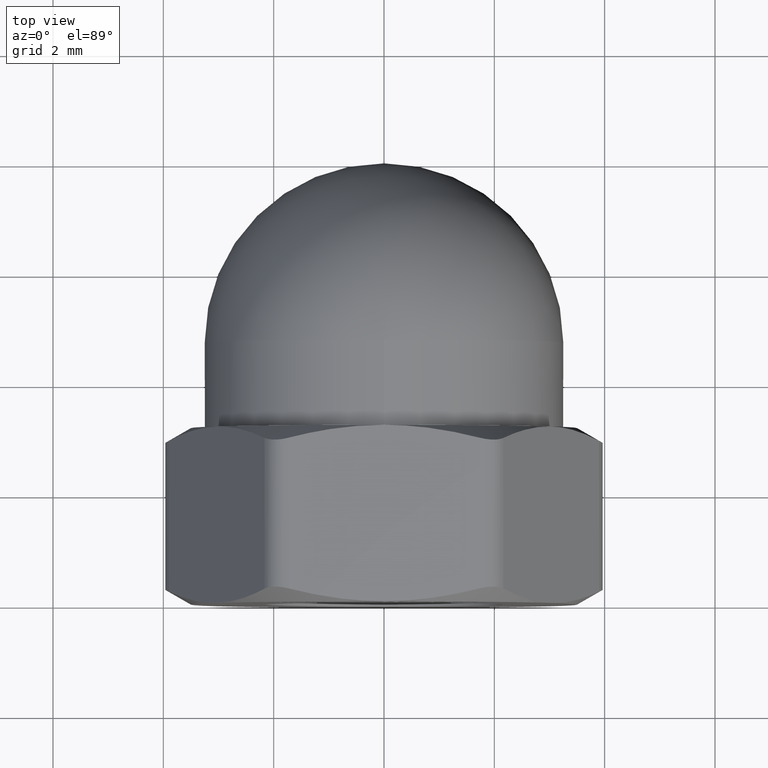
[diagram: clean part render]
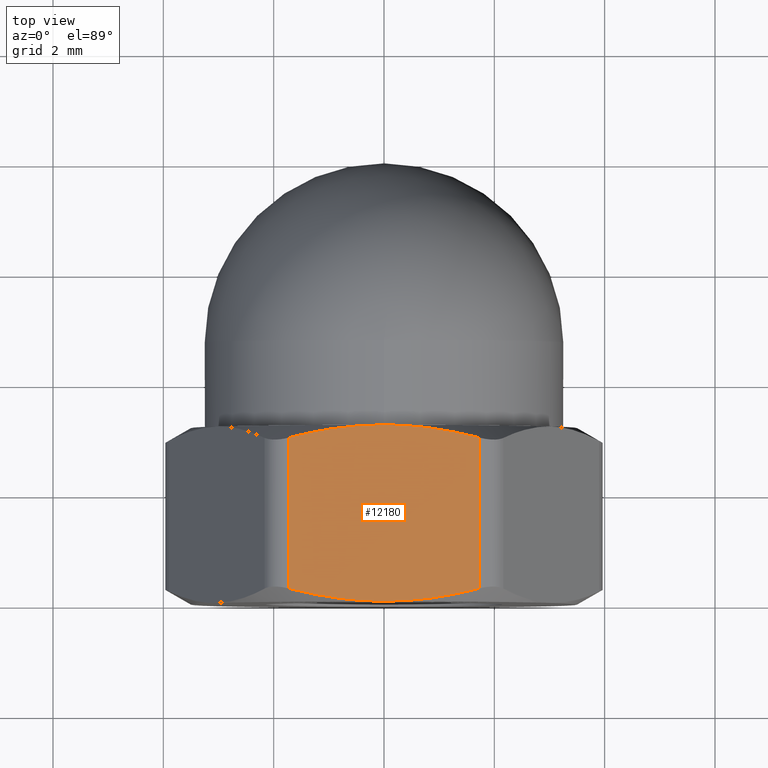
[diagram: same view with one face highlighted and labeled with its STEP entity id]
A machine part, top view. The second image highlights one B-rep face of the part: STEP entity #12180.
In plain terms, the highlighted planar face has unit normal (-0, 0, -1).
Its self-contained STEP definition (entity closure, byte-faithful):
#187 = LINE ( 'NONE', #3444, #2893 ) ;
#787 = CARTESIAN_POINT ( 'NONE',  ( -0.2917606045236313900, 3.200000000000000200, 3.500000000000000400 ) ) ;
#1360 = VERTEX_POINT ( 'NONE', #15679 ) ;
#1758 = CARTESIAN_POINT ( 'NONE',  ( -0.5819126411104323900, 3.178658643848156100, 3.500000000000000000 ) ) ;
#1986 = CARTESIAN_POINT ( 'NONE',  ( -1.732050807568966700, 0.2338989342477722500, 3.500000000000000400 ) ) ;
#2047 = CARTESIAN_POINT ( 'NONE',  ( -0.5819126411104331700, 0.02134135615184365100, 3.500000000000000900 ) ) ;
#2129 = EDGE_CURVE ( 'NONE', #6751, #3720, #187, .T. ) ;
#2575 = VERTEX_POINT ( 'NONE', #11294 ) ;
#2578 = VERTEX_POINT ( 'NONE', #2729 ) ;
#2676 = CARTESIAN_POINT ( 'NONE',  ( 0.2915641519570842400, 3.200000000000000200, 3.500000000000000400 ) ) ;
#2729 = CARTESIAN_POINT ( 'NONE',  ( 1.732050807568877600, 0.2338989342477538500, 3.500000000000000000 ) ) ;
#2782 = PLANE ( 'NONE',  #6451 ) ;
#2893 = VECTOR ( 'NONE', #13203, 1000.000000000000000 ) ;
#3044 = LINE ( 'NONE', #5520, #12421 ) ;
#3130 = ORIENTED_EDGE ( 'NONE', *, *, #15172, .F. ) ;
#3187 = CARTESIAN_POINT ( 'NONE',  ( -1.732050807568966900, 2.966101065752227800, 3.500000000000000400 ) ) ;
#3444 = CARTESIAN_POINT ( 'NONE',  ( -1.732050807568875900, 3.200000000000000200, 3.500000000000000400 ) ) ;
#3472 = B_SPLINE_CURVE_WITH_KNOTS ( 'NONE', 3,
 ( #6971, #5681, #2047, #9237, #8223, #1986 ),
 .UNSPECIFIED., .F., .F.,
 ( 4, 2, 4 ),
 ( 0.003521486716822322300, 0.004392587170881128600, 0.005263687624939935300 ),
 .UNSPECIFIED. ) ;
#3720 = VERTEX_POINT ( 'NONE', #7125 ) ;
#4005 = CARTESIAN_POINT ( 'NONE',  ( -2.020725942163688900, 3.200000000000000200, 3.500000000000000400 ) ) ;
#4613 = CARTESIAN_POINT ( 'NONE',  ( 0.5869129818520767400, 0.02178223656191097300, 3.500000000000000000 ) ) ;
#4667 = ORIENTED_EDGE ( 'NONE', *, *, #2129, .T. ) ;
#5113 = EDGE_CURVE ( 'NONE', #2578, #1360, #3044, .T. ) ;
#5215 = DIRECTION ( 'NONE',  ( -1.000000000000000000, 0.0000000000000000000, 1.073081856240828300E-016 ) ) ;
#5216 = CARTESIAN_POINT ( 'NONE',  ( 1.450919357178536400, 3.038091453270223200, 3.500000000000000000 ) ) ;
#5404 = EDGE_CURVE ( 'NONE', #2575, #1360, #13605, .T. ) ;
#5520 = CARTESIAN_POINT ( 'NONE',  ( 1.732050807568878300, 3.200000000000000200, 3.500000000000000000 ) ) ;
#5681 = CARTESIAN_POINT ( 'NONE',  ( -0.2917606045236315600, -8.957373417214223600E-017, 3.500000000000000000 ) ) ;
#5943 = CARTESIAN_POINT ( 'NONE',  ( 0.2915641519570845700, -7.962109704190422000E-017, 3.500000000000000900 ) ) ;
#6451 = AXIS2_PLACEMENT_3D ( 'NONE', #4005, #12585, #5215 ) ;
#6601 = ORIENTED_EDGE ( 'NONE', *, *, #5404, .F. ) ;
#6751 = VERTEX_POINT ( 'NONE', #10107 ) ;
#6971 = CARTESIAN_POINT ( 'NONE',  ( 3.755786496842899100E-016, 0.0000000000000000000, 3.500000000000000400 ) ) ;
#7069 = EDGE_CURVE ( 'NONE', #9655, #3720, #3472, .T. ) ;
#7125 = CARTESIAN_POINT ( 'NONE',  ( -1.732050807568966700, 0.2338989342477722500, 3.500000000000000400 ) ) ;
#8007 = CARTESIAN_POINT ( 'NONE',  ( -1.448005842856597200, 3.038837527837072700, 3.500000000000000000 ) ) ;
#8163 = CARTESIAN_POINT ( 'NONE',  ( -1.159367768899698200, 3.098178113552327400, 3.500000000000000900 ) ) ;
#8223 = CARTESIAN_POINT ( 'NONE',  ( -1.448005842856597600, 0.1611624721629278100, 3.500000000000000400 ) ) ;
#8314 = CARTESIAN_POINT ( 'NONE',  ( 1.166222244035858300, 0.1030385186228933900, 3.500000000000000900 ) ) ;
#8552 = FACE_OUTER_BOUND ( 'NONE', #11728, .T. ) ;
#8922 = B_SPLINE_CURVE_WITH_KNOTS ( 'NONE', 3,
 ( #3187, #8007, #8163, #1758, #787, #9183 ),
 .UNSPECIFIED., .F., .F.,
 ( 4, 2, 4 ),
 ( 0.003902831082088661200, 0.004776164238037103300, 0.005649497393985544600 ),
 .UNSPECIFIED. ) ;
#9183 = CARTESIAN_POINT ( 'NONE',  ( 3.755786496842899100E-016, 3.200000000000000200, 3.500000000000000400 ) ) ;
#9237 = CARTESIAN_POINT ( 'NONE',  ( -1.159367768899698600, 0.1018218864476733700, 3.500000000000000000 ) ) ;
#9506 = CARTESIAN_POINT ( 'NONE',  ( 1.450919357178536400, 0.1619085467297766400, 3.500000000000000000 ) ) ;
#9612 = CARTESIAN_POINT ( 'NONE',  ( 3.755786496842899100E-016, 3.200000000000000200, 3.500000000000000400 ) ) ;
#9655 = VERTEX_POINT ( 'NONE', #12315 ) ;
#10067 = CARTESIAN_POINT ( 'NONE',  ( 1.166222244035857800, 3.096961481377106900, 3.499999999999999600 ) ) ;
#10107 = CARTESIAN_POINT ( 'NONE',  ( -1.732050807568966900, 2.966101065752227800, 3.500000000000000400 ) ) ;
#11294 = CARTESIAN_POINT ( 'NONE',  ( 3.755786496842899100E-016, 3.200000000000000200, 3.500000000000000400 ) ) ;
#11393 = CARTESIAN_POINT ( 'NONE',  ( 0.5869129818520766300, 3.178217763438088800, 3.500000000000000900 ) ) ;
#11728 = EDGE_LOOP ( 'NONE', ( #3130, #4667, #11950, #12753, #14051, #6601 ) ) ;
#11885 = EDGE_CURVE ( 'NONE', #2578, #9655, #12601, .T. ) ;
#11950 = ORIENTED_EDGE ( 'NONE', *, *, #7069, .F. ) ;
#12180 = ADVANCED_FACE ( 'NONE', ( #8552 ), #2782, .F. ) ;
#12315 = CARTESIAN_POINT ( 'NONE',  ( 3.755786496842899100E-016, 0.0000000000000000000, 3.500000000000000400 ) ) ;
#12421 = VECTOR ( 'NONE', #13005, 1000.000000000000000 ) ;
#12585 = DIRECTION ( 'NONE',  ( -1.073081856240828300E-016, 0.0000000000000000000, -1.000000000000000000 ) ) ;
#12586 = CARTESIAN_POINT ( 'NONE',  ( 1.732050807568877600, 2.966101065752246000, 3.500000000000000000 ) ) ;
#12601 = B_SPLINE_CURVE_WITH_KNOTS ( 'NONE', 3,
 ( #15548, #9506, #8314, #4613, #5943, #15809 ),
 .UNSPECIFIED., .F., .F.,
 ( 4, 2, 4 ),
 ( 0.001780458893194305400, 0.002650972805008314100, 0.003521486716822322300 ),
 .UNSPECIFIED. ) ;
#12753 = ORIENTED_EDGE ( 'NONE', *, *, #11885, .F. ) ;
#13005 = DIRECTION ( 'NONE',  ( -0.0000000000000000000, 1.000000000000000000, -0.0000000000000000000 ) ) ;
#13203 = DIRECTION ( 'NONE',  ( 0.0000000000000000000, -1.000000000000000000, 0.0000000000000000000 ) ) ;
#13605 = B_SPLINE_CURVE_WITH_KNOTS ( 'NONE', 3,
 ( #9612, #2676, #11393, #10067, #5216, #12586 ),
 .UNSPECIFIED., .F., .F.,
 ( 4, 2, 4 ),
 ( 0.005649497393985544600, 0.006522242504333320900, 0.007394987614681097300 ),
 .UNSPECIFIED. ) ;
#14051 = ORIENTED_EDGE ( 'NONE', *, *, #5113, .T. ) ;
#15172 = EDGE_CURVE ( 'NONE', #6751, #2575, #8922, .T. ) ;
#15548 = CARTESIAN_POINT ( 'NONE',  ( 1.732050807568877600, 0.2338989342477538500, 3.500000000000000000 ) ) ;
#15679 = CARTESIAN_POINT ( 'NONE',  ( 1.732050807568877600, 2.966101065752246000, 3.500000000000000000 ) ) ;
#15809 = CARTESIAN_POINT ( 'NONE',  ( 3.755786496842899100E-016, 0.0000000000000000000, 3.500000000000000400 ) ) ;